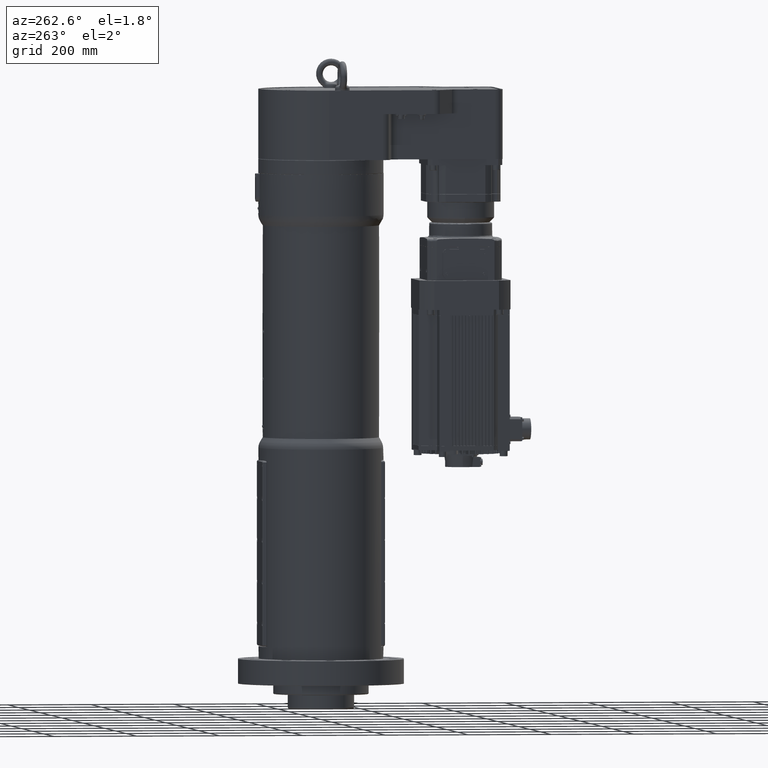
[diagram: clean part render]
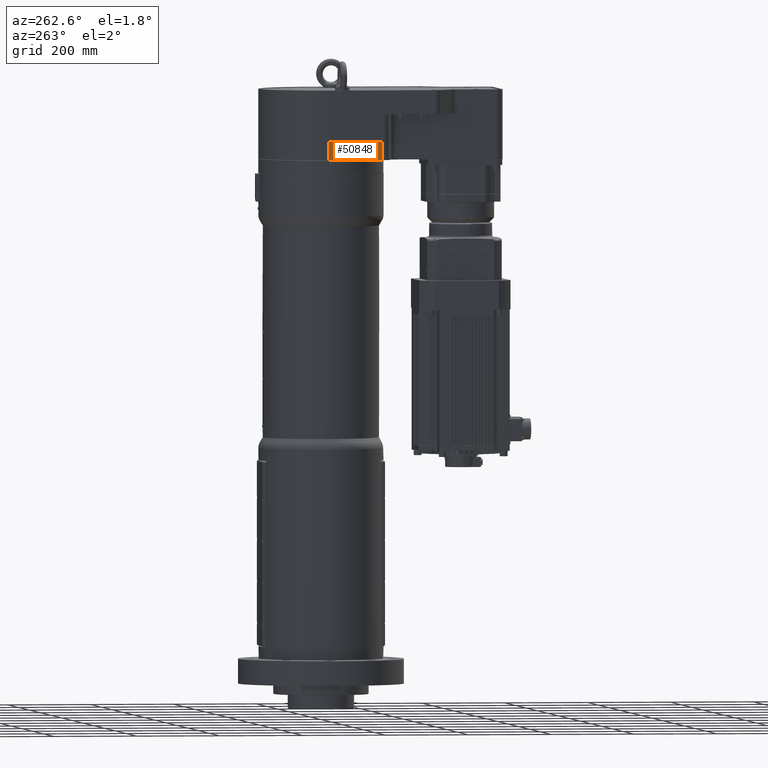
[diagram: same view with one face highlighted and labeled with its STEP entity id]
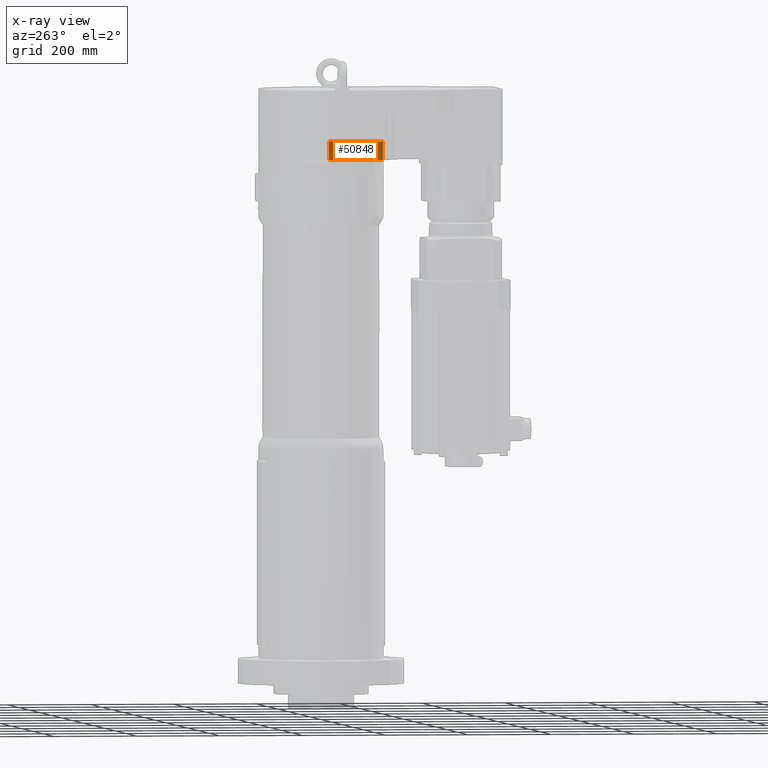
[diagram: x-ray of the same camera — body ghosted, the highlighted face saturated]
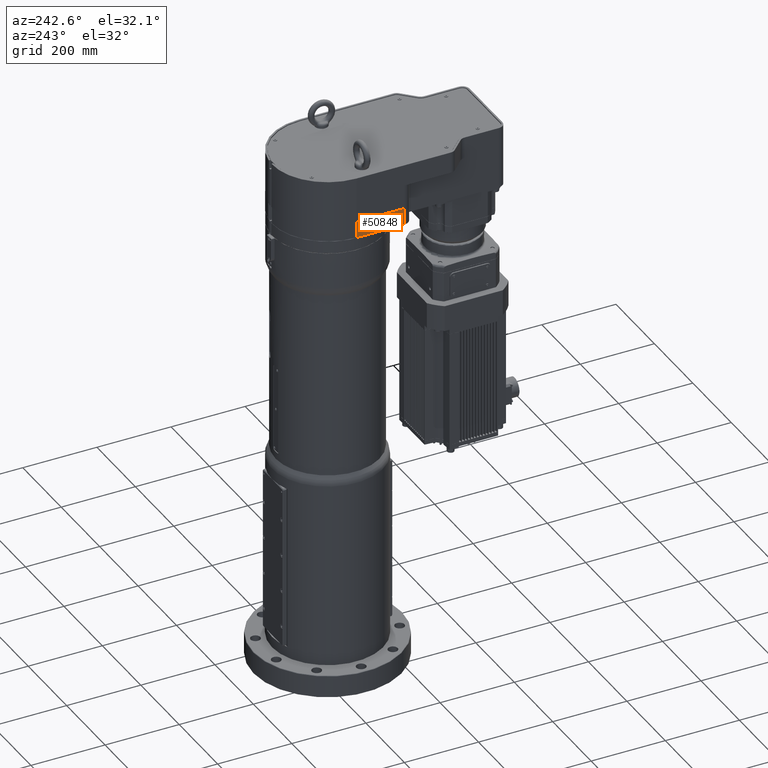
[diagram: same view with one face highlighted and labeled with its STEP entity id]
A machine part, auxiliary view. The second image highlights one B-rep face of the part: STEP entity #50848.
The next image is the same camera in x-ray: the body ghosted, the highlighted face saturated — about 0% of this face is hidden behind the body in this view.
A second angle (auxiliary view) of the same face is appended — the face is thin or edge-on in the first view.
In plain terms, the highlighted planar face has unit normal (-1, -0, -0).
Its self-contained STEP definition (entity closure, byte-faithful):
#6072=PLANE('',#53921);
#7846=FACE_OUTER_BOUND('',#10686,.T.);
#10686=EDGE_LOOP('',(#35908,#35909,#35910,#35911));
#13906=LINE('',#72347,#18313);
#13908=LINE('',#72353,#18315);
#13909=LINE('',#72355,#18316);
#13910=LINE('',#72356,#18317);
#18313=VECTOR('',#58820,10.);
#18315=VECTOR('',#58826,10.);
#18316=VECTOR('',#58827,10.);
#18317=VECTOR('',#58828,10.);
#23438=VERTEX_POINT('',#72343);
#23440=VERTEX_POINT('',#72346);
#23442=VERTEX_POINT('',#72352);
#23443=VERTEX_POINT('',#72354);
#28391=EDGE_CURVE('',#23438,#23440,#13906,.T.);
#28394=EDGE_CURVE('',#23438,#23442,#13908,.T.);
#28395=EDGE_CURVE('',#23443,#23442,#13909,.T.);
#28396=EDGE_CURVE('',#23443,#23440,#13910,.T.);
#35908=ORIENTED_EDGE('',*,*,#28391,.F.);
#35909=ORIENTED_EDGE('',*,*,#28394,.T.);
#35910=ORIENTED_EDGE('',*,*,#28395,.F.);
#35911=ORIENTED_EDGE('',*,*,#28396,.T.);
#50848=ADVANCED_FACE('',(#7846),#6072,.T.);
#53921=AXIS2_PLACEMENT_3D('',#72351,#58824,#58825);
#58820=DIRECTION('',(1.60829599099755E-16,-2.3352174656612E-32,-1.));
#58824=DIRECTION('center_axis',(-1.,-8.52503024460022E-15,-1.60829599099755E-16));
#58825=DIRECTION('ref_axis',(8.52503024460022E-15,-1.,1.39442937120895E-30));
#58826=DIRECTION('',(-8.9615484345441E-15,1.,-1.62154267932504E-30));
#58827=DIRECTION('',(-1.60829599099755E-16,2.3352174656612E-32,1.));
#58828=DIRECTION('',(8.52503024460022E-15,-1.,1.39442937120895E-30));
#72343=CARTESIAN_POINT('',(-149.999999999997,-129.999999999992,1303.));
#72346=CARTESIAN_POINT('',(-149.999999999999,-130.000000000001,1258.));
#72347=CARTESIAN_POINT('',(-149.999999999999,-130.000000000001,1258.));
#72351=CARTESIAN_POINT('Origin',(-150.,-1.31428475374241E-12,1258.));
#72352=CARTESIAN_POINT('',(-149.999999999998,7.73665365706607E-12,1303.));
#72353=CARTESIAN_POINT('',(-149.999999999998,7.73665365706607E-12,1303.));
#72354=CARTESIAN_POINT('',(-150.,-1.31428475374241E-12,1258.));
#72355=CARTESIAN_POINT('',(-150.,-1.31428475374241E-12,1258.));
#72356=CARTESIAN_POINT('',(-150.,-1.31428475374241E-12,1258.));